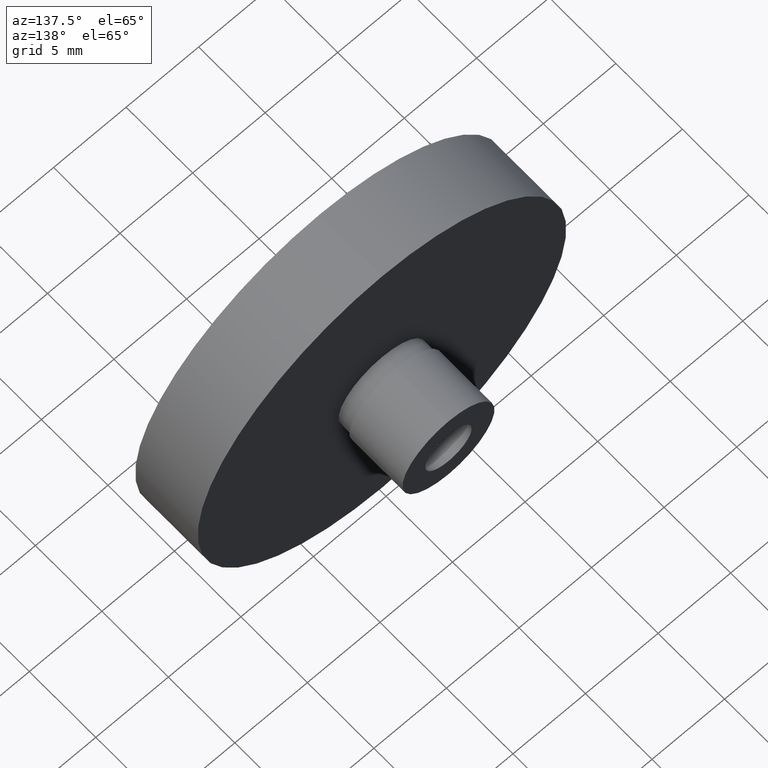
[diagram: clean part render]
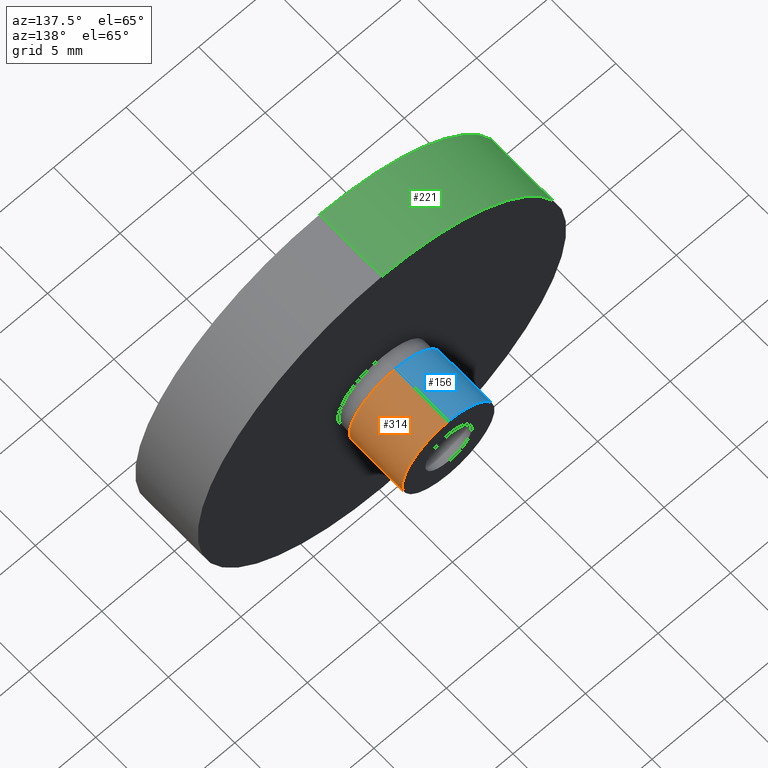
[diagram: same view with three faces highlighted in distinct colors, each labeled with its STEP entity id]
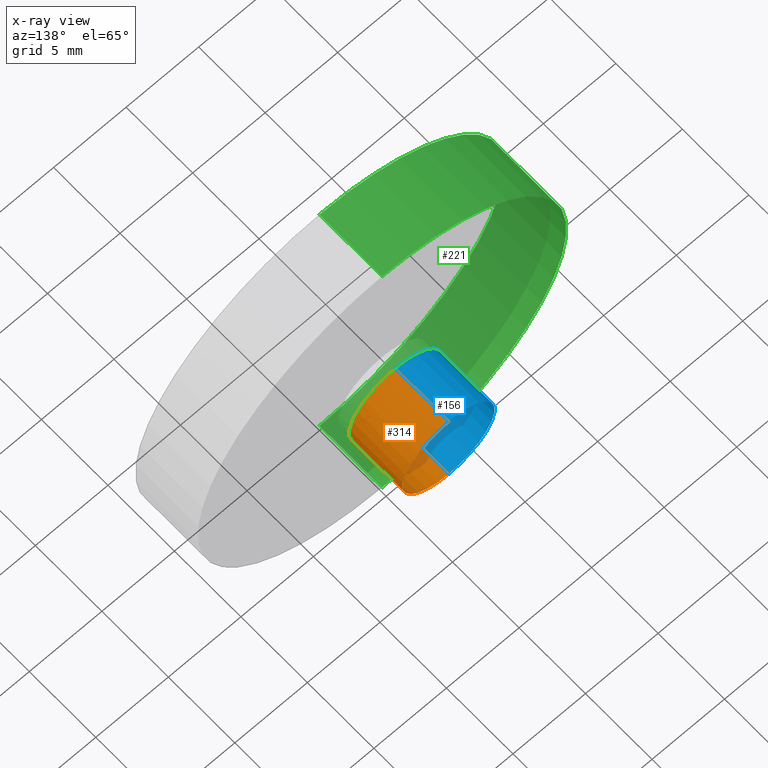
[diagram: x-ray of the same camera — body ghosted, the three highlighted faces saturated]
A machine part, auxiliary view with three faces highlighted in distinct colors.
The next image is the same camera in x-ray (body ghosted, the three faces saturated) — at least one of them is partly hidden behind the body in this view.
Their STEP definitions:

[orange] entity #314 — the highlighted cylindrical surface (partial cylindrical patch) has radius 3.175 mm, axis along (-0, 1, -0).
#10 = CARTESIAN_POINT ( 'NONE',  ( 0.0000000000000000000, 5.699999999999996600, 0.0000000000000000000 ) ) ;
#49 = ORIENTED_EDGE ( 'NONE', *, *, #153, .F. ) ;
#54 = LINE ( 'NONE', #134, #88 ) ;
#60 = EDGE_CURVE ( 'NONE', #280, #267, #291, .T. ) ;
#66 = AXIS2_PLACEMENT_3D ( 'NONE', #10, #268, #356 ) ;
#88 = VECTOR ( 'NONE', #163, 1000.000000000000000 ) ;
#111 = CARTESIAN_POINT ( 'NONE',  ( 0.0000000000000000000, 5.699999999999996600, 3.175000000000004300 ) ) ;
#113 = EDGE_LOOP ( 'NONE', ( #227, #405, #49, #372 ) ) ;
#115 = CARTESIAN_POINT ( 'NONE',  ( 0.0000000000000000000, 41.06170623995065900, 0.0000000000000000000 ) ) ;
#134 = CARTESIAN_POINT ( 'NONE',  ( 0.0000000000000000000, 41.06170623995065900, 3.175000000000004300 ) ) ;
#135 = CARTESIAN_POINT ( 'NONE',  ( 0.0000000000000000000, 9.700000000000001100, 3.175000000000004300 ) ) ;
#143 = AXIS2_PLACEMENT_3D ( 'NONE', #204, #235, #381 ) ;
#150 = CIRCLE ( 'NONE', #66, 3.175000000000004300 ) ;
#153 = EDGE_CURVE ( 'NONE', #193, #267, #185, .T. ) ;
#160 = CARTESIAN_POINT ( 'NONE',  ( 3.888253587292851500E-016, 41.06170623995065900, -3.175000000000004300 ) ) ;
#163 = DIRECTION ( 'NONE',  ( -0.0000000000000000000, 1.000000000000000000, -0.0000000000000000000 ) ) ;
#166 = EDGE_CURVE ( 'NONE', #228, #193, #54, .T. ) ;
#180 = CYLINDRICAL_SURFACE ( 'NONE', #223, 3.175000000000004300 ) ;
#182 = EDGE_CURVE ( 'NONE', #228, #280, #150, .T. ) ;
#185 = CIRCLE ( 'NONE', #143, 3.175000000000004300 ) ;
#190 = DIRECTION ( 'NONE',  ( -0.0000000000000000000, 1.000000000000000000, -0.0000000000000000000 ) ) ;
#193 = VERTEX_POINT ( 'NONE', #135 ) ;
#204 = CARTESIAN_POINT ( 'NONE',  ( 0.0000000000000000000, 9.700000000000001100, 0.0000000000000000000 ) ) ;
#218 = VECTOR ( 'NONE', #190, 1000.000000000000000 ) ;
#223 = AXIS2_PLACEMENT_3D ( 'NONE', #115, #335, #331 ) ;
#227 = ORIENTED_EDGE ( 'NONE', *, *, #182, .T. ) ;
#228 = VERTEX_POINT ( 'NONE', #111 ) ;
#235 = DIRECTION ( 'NONE',  ( -0.0000000000000000000, 1.000000000000000000, -0.0000000000000000000 ) ) ;
#243 = CARTESIAN_POINT ( 'NONE',  ( 3.888253587292851500E-016, 9.700000000000001100, -3.175000000000004300 ) ) ;
#267 = VERTEX_POINT ( 'NONE', #243 ) ;
#268 = DIRECTION ( 'NONE',  ( -0.0000000000000000000, 1.000000000000000000, -0.0000000000000000000 ) ) ;
#280 = VERTEX_POINT ( 'NONE', #302 ) ;
#291 = LINE ( 'NONE', #160, #218 ) ;
#302 = CARTESIAN_POINT ( 'NONE',  ( 3.888253587292851500E-016, 5.699999999999996600, -3.175000000000004300 ) ) ;
#314 = ADVANCED_FACE ( 'NONE', ( #354 ), #180, .T. ) ;
#331 = DIRECTION ( 'NONE',  ( 0.0000000000000000000, 0.0000000000000000000, 1.000000000000000000 ) ) ;
#335 = DIRECTION ( 'NONE',  ( -0.0000000000000000000, 1.000000000000000000, -0.0000000000000000000 ) ) ;
#354 = FACE_OUTER_BOUND ( 'NONE', #113, .T. ) ;
#356 = DIRECTION ( 'NONE',  ( 0.0000000000000000000, 0.0000000000000000000, 1.000000000000000000 ) ) ;
#372 = ORIENTED_EDGE ( 'NONE', *, *, #166, .F. ) ;
#381 = DIRECTION ( 'NONE',  ( 0.0000000000000000000, 0.0000000000000000000, 1.000000000000000000 ) ) ;
#405 = ORIENTED_EDGE ( 'NONE', *, *, #60, .T. ) ;

[blue] entity #156 — the highlighted cylindrical surface (partial cylindrical patch) has radius 3.175 mm, axis along (-0, 1, -0).
#20 = ORIENTED_EDGE ( 'NONE', *, *, #60, .F. ) ;
#31 = AXIS2_PLACEMENT_3D ( 'NONE', #364, #177, #395 ) ;
#32 = CARTESIAN_POINT ( 'NONE',  ( 0.0000000000000000000, 41.06170623995065900, 0.0000000000000000000 ) ) ;
#35 = DIRECTION ( 'NONE',  ( -0.0000000000000000000, 1.000000000000000000, -0.0000000000000000000 ) ) ;
#54 = LINE ( 'NONE', #134, #88 ) ;
#60 = EDGE_CURVE ( 'NONE', #280, #267, #291, .T. ) ;
#62 = FACE_OUTER_BOUND ( 'NONE', #261, .T. ) ;
#83 = CIRCLE ( 'NONE', #31, 3.175000000000004300 ) ;
#88 = VECTOR ( 'NONE', #163, 1000.000000000000000 ) ;
#89 = ORIENTED_EDGE ( 'NONE', *, *, #90, .F. ) ;
#90 = EDGE_CURVE ( 'NONE', #267, #193, #380, .T. ) ;
#111 = CARTESIAN_POINT ( 'NONE',  ( 0.0000000000000000000, 5.699999999999996600, 3.175000000000004300 ) ) ;
#120 = AXIS2_PLACEMENT_3D ( 'NONE', #295, #35, #387 ) ;
#127 = ORIENTED_EDGE ( 'NONE', *, *, #338, .T. ) ;
#134 = CARTESIAN_POINT ( 'NONE',  ( 0.0000000000000000000, 41.06170623995065900, 3.175000000000004300 ) ) ;
#135 = CARTESIAN_POINT ( 'NONE',  ( 0.0000000000000000000, 9.700000000000001100, 3.175000000000004300 ) ) ;
#154 = CYLINDRICAL_SURFACE ( 'NONE', #304, 3.175000000000004300 ) ;
#156 = ADVANCED_FACE ( 'NONE', ( #62 ), #154, .T. ) ;
#160 = CARTESIAN_POINT ( 'NONE',  ( 3.888253587292851500E-016, 41.06170623995065900, -3.175000000000004300 ) ) ;
#163 = DIRECTION ( 'NONE',  ( -0.0000000000000000000, 1.000000000000000000, -0.0000000000000000000 ) ) ;
#166 = EDGE_CURVE ( 'NONE', #228, #193, #54, .T. ) ;
#177 = DIRECTION ( 'NONE',  ( -0.0000000000000000000, 1.000000000000000000, -0.0000000000000000000 ) ) ;
#189 = ORIENTED_EDGE ( 'NONE', *, *, #166, .T. ) ;
#190 = DIRECTION ( 'NONE',  ( -0.0000000000000000000, 1.000000000000000000, -0.0000000000000000000 ) ) ;
#193 = VERTEX_POINT ( 'NONE', #135 ) ;
#218 = VECTOR ( 'NONE', #190, 1000.000000000000000 ) ;
#228 = VERTEX_POINT ( 'NONE', #111 ) ;
#243 = CARTESIAN_POINT ( 'NONE',  ( 3.888253587292851500E-016, 9.700000000000001100, -3.175000000000004300 ) ) ;
#261 = EDGE_LOOP ( 'NONE', ( #20, #127, #189, #89 ) ) ;
#267 = VERTEX_POINT ( 'NONE', #243 ) ;
#280 = VERTEX_POINT ( 'NONE', #302 ) ;
#291 = LINE ( 'NONE', #160, #218 ) ;
#295 = CARTESIAN_POINT ( 'NONE',  ( 0.0000000000000000000, 9.700000000000001100, 0.0000000000000000000 ) ) ;
#298 = DIRECTION ( 'NONE',  ( 0.0000000000000000000, 0.0000000000000000000, 1.000000000000000000 ) ) ;
#302 = CARTESIAN_POINT ( 'NONE',  ( 3.888253587292851500E-016, 5.699999999999996600, -3.175000000000004300 ) ) ;
#304 = AXIS2_PLACEMENT_3D ( 'NONE', #32, #350, #298 ) ;
#338 = EDGE_CURVE ( 'NONE', #280, #228, #83, .T. ) ;
#350 = DIRECTION ( 'NONE',  ( -0.0000000000000000000, 1.000000000000000000, -0.0000000000000000000 ) ) ;
#364 = CARTESIAN_POINT ( 'NONE',  ( 0.0000000000000000000, 5.699999999999996600, 0.0000000000000000000 ) ) ;
#380 = CIRCLE ( 'NONE', #120, 3.175000000000004300 ) ;
#387 = DIRECTION ( 'NONE',  ( 0.0000000000000000000, 0.0000000000000000000, 1.000000000000000000 ) ) ;
#395 = DIRECTION ( 'NONE',  ( 0.0000000000000000000, 0.0000000000000000000, 1.000000000000000000 ) ) ;

[green] entity #221 — the highlighted cylindrical surface (partial cylindrical patch) has radius 12.7 mm, axis along (-0, 1, -0).
#14 = ORIENTED_EDGE ( 'NONE', *, *, #263, .F. ) ;
#17 = CIRCLE ( 'NONE', #132, 12.70000000000000500 ) ;
#40 = CARTESIAN_POINT ( 'NONE',  ( 0.0000000000000000000, 41.06170623995065900, 0.0000000000000000000 ) ) ;
#47 = DIRECTION ( 'NONE',  ( 0.0000000000000000000, 0.0000000000000000000, 1.000000000000000000 ) ) ;
#57 = LINE ( 'NONE', #353, #209 ) ;
#71 = EDGE_CURVE ( 'NONE', #319, #105, #57, .T. ) ;
#74 = DIRECTION ( 'NONE',  ( 0.0000000000000000000, 0.0000000000000000000, 1.000000000000000000 ) ) ;
#82 = DIRECTION ( 'NONE',  ( -0.0000000000000000000, 1.000000000000000000, -0.0000000000000000000 ) ) ;
#100 = DIRECTION ( 'NONE',  ( 0.0000000000000000000, 0.0000000000000000000, 1.000000000000000000 ) ) ;
#101 = CARTESIAN_POINT ( 'NONE',  ( 1.555301434917139000E-015, 4.700000000000002800, -12.70000000000000500 ) ) ;
#105 = VERTEX_POINT ( 'NONE', #101 ) ;
#114 = EDGE_CURVE ( 'NONE', #319, #284, #244, .T. ) ;
#119 = CARTESIAN_POINT ( 'NONE',  ( 0.0000000000000000000, 0.0000000000000000000, 12.70000000000000500 ) ) ;
#122 = ORIENTED_EDGE ( 'NONE', *, *, #71, .F. ) ;
#132 = AXIS2_PLACEMENT_3D ( 'NONE', #390, #398, #47 ) ;
#139 = LINE ( 'NONE', #141, #401 ) ;
#141 = CARTESIAN_POINT ( 'NONE',  ( 0.0000000000000000000, 41.06170623995065900, 12.70000000000000500 ) ) ;
#142 = CARTESIAN_POINT ( 'NONE',  ( 1.555301434917139000E-015, 0.0000000000000000000, -12.70000000000000500 ) ) ;
#155 = ORIENTED_EDGE ( 'NONE', *, *, #256, .T. ) ;
#157 = AXIS2_PLACEMENT_3D ( 'NONE', #200, #170, #100 ) ;
#170 = DIRECTION ( 'NONE',  ( -0.0000000000000000000, 1.000000000000000000, -0.0000000000000000000 ) ) ;
#194 = EDGE_LOOP ( 'NONE', ( #122, #316, #155, #14 ) ) ;
#200 = CARTESIAN_POINT ( 'NONE',  ( 0.0000000000000000000, 0.0000000000000000000, 0.0000000000000000000 ) ) ;
#209 = VECTOR ( 'NONE', #352, 1000.000000000000000 ) ;
#215 = VERTEX_POINT ( 'NONE', #385 ) ;
#221 = ADVANCED_FACE ( 'NONE', ( #332 ), #294, .T. ) ;
#244 = CIRCLE ( 'NONE', #157, 12.70000000000000500 ) ;
#256 = EDGE_CURVE ( 'NONE', #284, #215, #139, .T. ) ;
#258 = AXIS2_PLACEMENT_3D ( 'NONE', #40, #82, #74 ) ;
#263 = EDGE_CURVE ( 'NONE', #105, #215, #17, .T. ) ;
#284 = VERTEX_POINT ( 'NONE', #119 ) ;
#294 = CYLINDRICAL_SURFACE ( 'NONE', #258, 12.70000000000000500 ) ;
#316 = ORIENTED_EDGE ( 'NONE', *, *, #114, .T. ) ;
#319 = VERTEX_POINT ( 'NONE', #142 ) ;
#332 = FACE_OUTER_BOUND ( 'NONE', #194, .T. ) ;
#352 = DIRECTION ( 'NONE',  ( -0.0000000000000000000, 1.000000000000000000, -0.0000000000000000000 ) ) ;
#353 = CARTESIAN_POINT ( 'NONE',  ( 1.555301434917139000E-015, 41.06170623995065900, -12.70000000000000500 ) ) ;
#360 = DIRECTION ( 'NONE',  ( -0.0000000000000000000, 1.000000000000000000, -0.0000000000000000000 ) ) ;
#385 = CARTESIAN_POINT ( 'NONE',  ( 0.0000000000000000000, 4.700000000000002800, 12.70000000000000500 ) ) ;
#390 = CARTESIAN_POINT ( 'NONE',  ( 0.0000000000000000000, 4.700000000000002800, 0.0000000000000000000 ) ) ;
#398 = DIRECTION ( 'NONE',  ( -0.0000000000000000000, 1.000000000000000000, -0.0000000000000000000 ) ) ;
#401 = VECTOR ( 'NONE', #360, 1000.000000000000000 ) ;